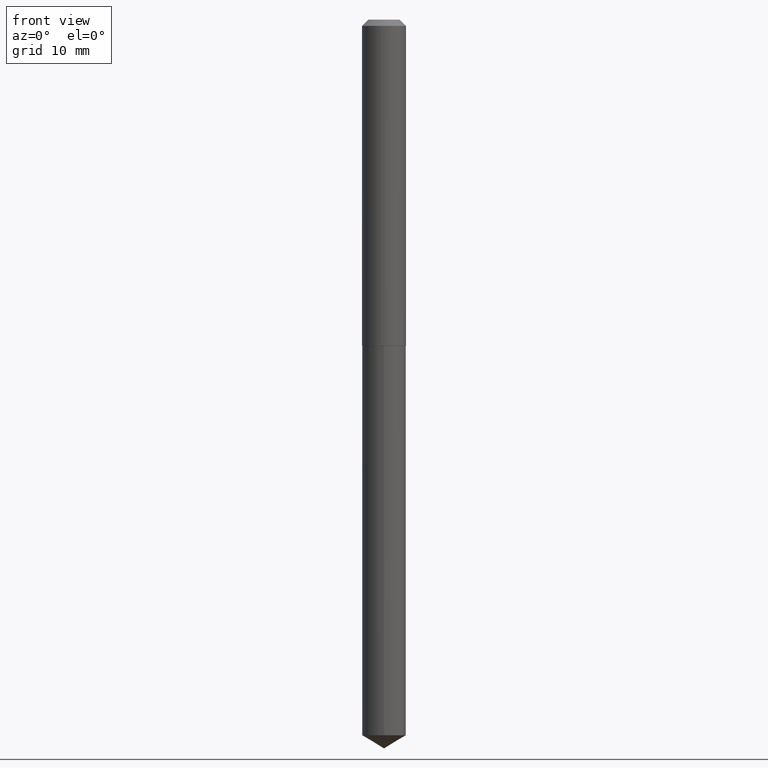
[diagram: clean part render]
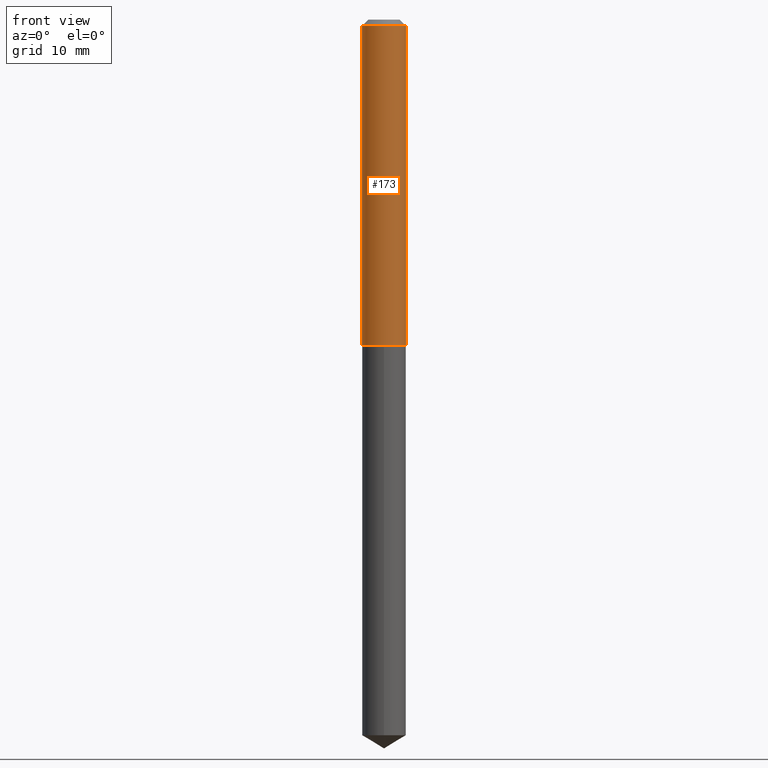
[diagram: same view with one face highlighted and labeled with its STEP entity id]
A machine part, front view. The second image highlights one B-rep face of the part: STEP entity #173.
In plain terms, the highlighted cylindrical surface (edge-blend (fillet) strip) has radius 2.8004 mm, axis along (-0, 0, 1).
Its self-contained STEP definition (entity closure, byte-faithful):
#3 = AXIS2_PLACEMENT_3D ( 'NONE', #194, #163, #35 ) ;
#4 = CARTESIAN_POINT ( 'NONE',  ( -0.1102500000000000008, -2.129482227787853014E-15, -0.03125000000000021511 ) ) ;
#9 = ORIENTED_EDGE ( 'NONE', *, *, #315, .F. ) ;
#19 = EDGE_CURVE ( 'NONE', #69, #278, #375, .T. ) ;
#23 = ORIENTED_EDGE ( 'NONE', *, *, #219, .T. ) ;
#24 = DIRECTION ( 'NONE',  ( -2.445468806185136597E-29, 3.491481338843145583E-15, 1.000000000000000000 ) ) ;
#30 = ORIENTED_EDGE ( 'NONE', *, *, #19, .T. ) ;
#35 = DIRECTION ( 'NONE',  ( 1.000000000000000000, -6.982962677686265133E-15, 0.000000000000000000 ) ) ;
#41 = DIRECTION ( 'NONE',  ( 1.000000000000000000, -6.982962677686266711E-15, 0.000000000000000000 ) ) ;
#58 = VERTEX_POINT ( 'NONE', #4 ) ;
#62 = EDGE_CURVE ( 'NONE', #58, #278, #333, .T. ) ;
#69 = VERTEX_POINT ( 'NONE', #371 ) ;
#83 = CARTESIAN_POINT ( 'NONE',  ( 0.000000000000000000, 0.000000000000000000, 0.000000000000000000 ) ) ;
#108 = VECTOR ( 'NONE', #361, 39.37007874015748143 ) ;
#126 = CARTESIAN_POINT ( 'NONE',  ( 7.642090019328604414E-31, -1.091087918388490513E-16, -0.03125000000000021511 ) ) ;
#151 = AXIS2_PLACEMENT_3D ( 'NONE', #83, #24, #154 ) ;
#154 = DIRECTION ( 'NONE',  ( 1.000000000000000000, -6.982962677686266711E-15, 4.876176775795935793E-29 ) ) ;
#163 = DIRECTION ( 'NONE',  ( -2.445468806185136597E-29, 3.491481338843145583E-15, 1.000000000000000000 ) ) ;
#173 = ADVANCED_FACE ( 'NONE', ( #182 ), #358, .T. ) ;
#178 = CARTESIAN_POINT ( 'NONE',  ( -0.1102500000000002089, -4.933229029912370247E-15, -1.637299999999999978 ) ) ;
#179 = DIRECTION ( 'NONE',  ( -2.445468806185136877E-29, 3.491481338843145188E-15, 1.000000000000000000 ) ) ;
#182 = FACE_OUTER_BOUND ( 'NONE', #308, .T. ) ;
#194 = CARTESIAN_POINT ( 'NONE',  ( 4.003966076366924393E-29, -5.716602396087881989E-15, -1.637299999999999978 ) ) ;
#205 = AXIS2_PLACEMENT_3D ( 'NONE', #126, #367, #41 ) ;
#209 = CARTESIAN_POINT ( 'NONE',  ( 0.1102500000000000008, -8.789804270537599818E-16, -0.03125000000000021511 ) ) ;
#216 = ORIENTED_EDGE ( 'NONE', *, *, #62, .F. ) ;
#219 = EDGE_CURVE ( 'NONE', #331, #69, #223, .T. ) ;
#223 = CIRCLE ( 'NONE', #3, 0.1102500000000002089 ) ;
#232 = CARTESIAN_POINT ( 'NONE',  ( 0.1102500000000001118, -7.698716352149116700E-16, 5.375984895315024509E-30 ) ) ;
#278 = VERTEX_POINT ( 'NONE', #209 ) ;
#305 = VECTOR ( 'NONE', #179, 39.37007874015748143 ) ;
#308 = EDGE_LOOP ( 'NONE', ( #9, #23, #30, #216 ) ) ;
#315 = EDGE_CURVE ( 'NONE', #331, #58, #346, .T. ) ;
#331 = VERTEX_POINT ( 'NONE', #178 ) ;
#333 = CIRCLE ( 'NONE', #205, 0.1102500000000000008 ) ;
#346 = LINE ( 'NONE', #356, #108 ) ;
#356 = CARTESIAN_POINT ( 'NONE',  ( -0.1102500000000001118, 7.833733661755112493E-16, -5.423125937006039074E-30 ) ) ;
#358 = CYLINDRICAL_SURFACE ( 'NONE', #151, 0.1102500000000001118 ) ;
#361 = DIRECTION ( 'NONE',  ( -2.445468806185136877E-29, 3.491481338843145188E-15, 1.000000000000000000 ) ) ;
#367 = DIRECTION ( 'NONE',  ( -2.445468806185136597E-29, 3.491481338843145583E-15, 1.000000000000000000 ) ) ;
#371 = CARTESIAN_POINT ( 'NONE',  ( 0.1102500000000002089, -6.486474031302794251E-15, -1.637299999999999978 ) ) ;
#375 = LINE ( 'NONE', #232, #305 ) ;